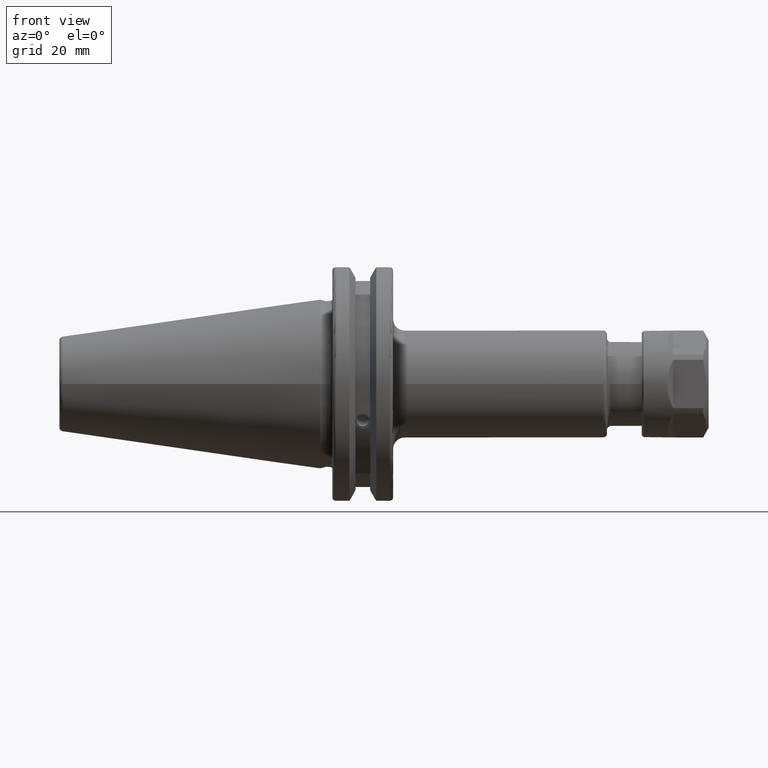
[diagram: clean part render]
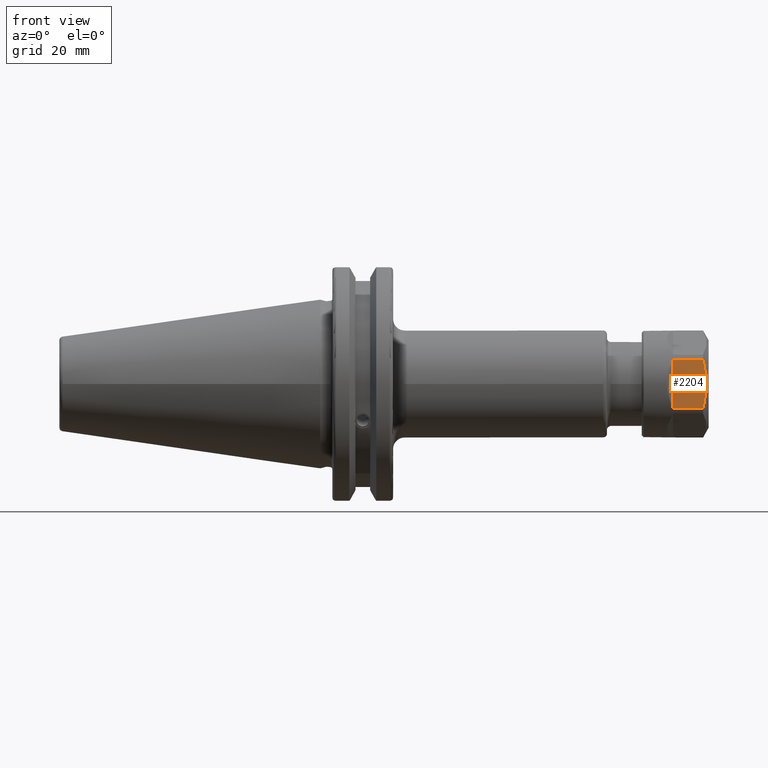
[diagram: same view with one face highlighted and labeled with its STEP entity id]
A machine part, front view. The second image highlights one B-rep face of the part: STEP entity #2204.
In plain terms, the highlighted planar face has unit normal (0, 1, 0).
Its self-contained STEP definition (entity closure, byte-faithful):
#53=(
BOUNDED_CURVE()
B_SPLINE_CURVE(2,(#4125,#4126,#4127),.UNSPECIFIED.,.F.,.F.)
B_SPLINE_CURVE_WITH_KNOTS((3,3),(-3.88699167916905,-1.76676018698455),
 .UNSPECIFIED.)
CURVE()
GEOMETRIC_REPRESENTATION_ITEM()
RATIONAL_B_SPLINE_CURVE((1.5788725780361,1.76833728740041,1.5788725780361))
REPRESENTATION_ITEM('')
);
#137=PLANE('',#2530);
#331=FACE_OUTER_BOUND('',#478,.T.);
#478=EDGE_LOOP('',(#1982,#1983,#1984,#1985));
#606=LINE('',#4149,#740);
#607=LINE('',#4150,#741);
#608=LINE('',#4151,#742);
#740=VECTOR('',#3152,12.60952021292);
#741=VECTOR('',#3153,7.856624327026);
#742=VECTOR('',#3154,7.856624327026);
#1063=VERTEX_POINT('',#4122);
#1064=VERTEX_POINT('',#4124);
#1070=VERTEX_POINT('',#4147);
#1071=VERTEX_POINT('',#4148);
#1371=EDGE_CURVE('',#1064,#1063,#53,.F.);
#1379=EDGE_CURVE('',#1070,#1071,#606,.T.);
#1380=EDGE_CURVE('',#1070,#1064,#607,.T.);
#1381=EDGE_CURVE('',#1071,#1063,#608,.T.);
#1982=ORIENTED_EDGE('',*,*,#1379,.F.);
#1983=ORIENTED_EDGE('',*,*,#1380,.T.);
#1984=ORIENTED_EDGE('',*,*,#1371,.T.);
#1985=ORIENTED_EDGE('',*,*,#1381,.F.);
#2204=ADVANCED_FACE('',(#331),#137,.F.);
#2530=AXIS2_PLACEMENT_3D('',#4146,#3150,#3151);
#3150=DIRECTION('center_axis',(0.,0.,1.));
#3151=DIRECTION('ref_axis',(0.,-1.,0.));
#3152=DIRECTION('',(0.,-1.,0.));
#3153=DIRECTION('',(1.,0.,0.));
#3154=DIRECTION('',(1.,0.,0.));
#4122=CARTESIAN_POINT('',(7.306624327026,-6.304760106459,-12.5));
#4124=CARTESIAN_POINT('',(7.306624327026,6.304760106459,-12.5));
#4125=CARTESIAN_POINT('Ctrl Pts',(7.30662432702432,-6.30476010645876,-12.5));
#4126=CARTESIAN_POINT('Ctrl Pts',(8.94588669847321,3.5527136788005E-15,
-12.5));
#4127=CARTESIAN_POINT('Ctrl Pts',(7.30662432702432,6.30476010645877,-12.5));
#4146=CARTESIAN_POINT('Origin',(8.75,10.,-12.5));
#4147=CARTESIAN_POINT('',(-0.55,6.304760106459,-12.5));
#4148=CARTESIAN_POINT('',(-0.55,-6.304760106459,-12.5));
#4149=CARTESIAN_POINT('',(-0.55,6.304760106459,-12.5));
#4150=CARTESIAN_POINT('',(-0.55,6.304760106459,-12.5));
#4151=CARTESIAN_POINT('',(-0.55,-6.304760106459,-12.5));